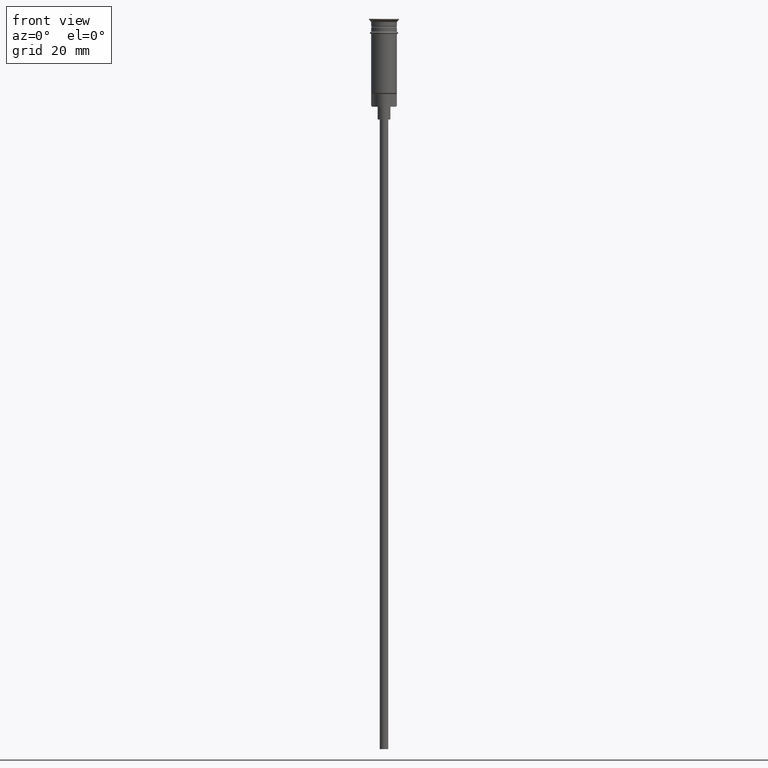
[diagram: clean part render]
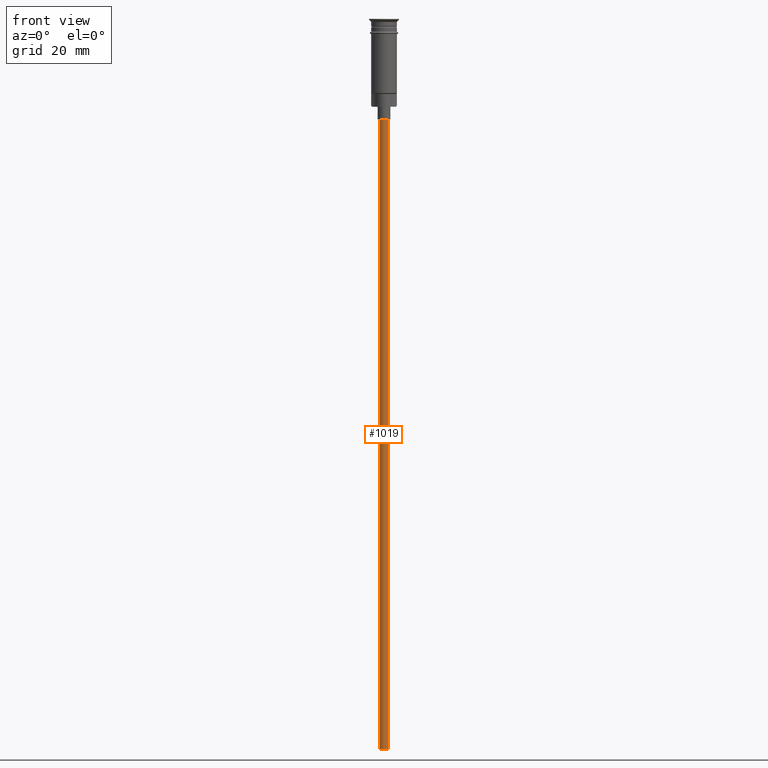
[diagram: same view with one face highlighted and labeled with its STEP entity id]
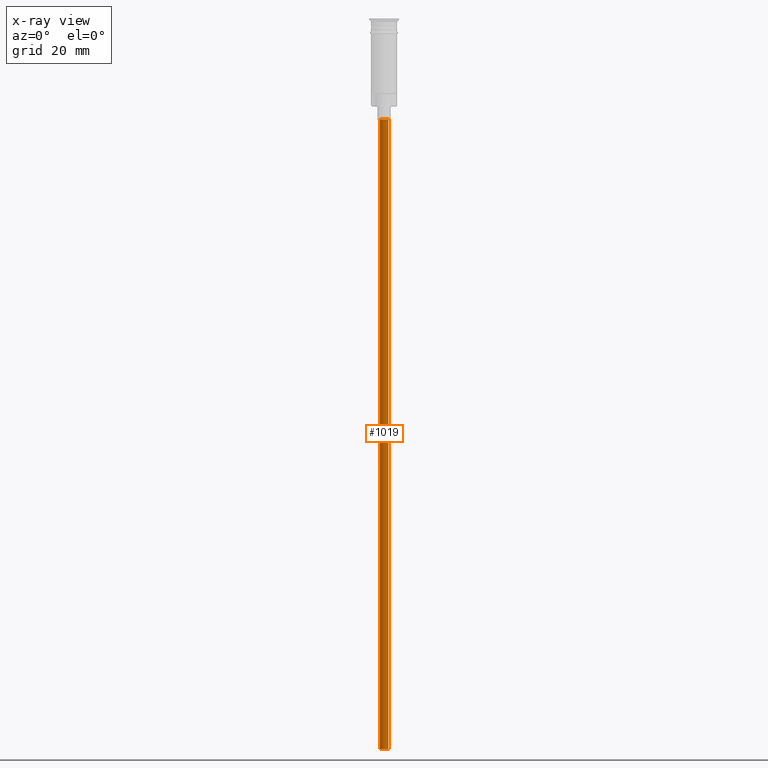
[diagram: x-ray of the same camera — body ghosted, the highlighted face saturated]
A machine part, front view. The second image highlights one B-rep face of the part: STEP entity #1019.
The next image is the same camera in x-ray: the body ghosted, the highlighted face saturated — about 0% of this face is hidden behind the body in this view.
In plain terms, the highlighted cylindrical surface (edge-blend (fillet) strip) has radius 1 mm, axis along (-0, -0, 1).
Its self-contained STEP definition (entity closure, byte-faithful):
#10 = EDGE_CURVE ( 'NONE', #75, #581, #1310, .T. ) ;
#35 = DIRECTION ( 'NONE',  ( 0.000000000000000000, 0.000000000000000000, -1.000000000000000000 ) ) ;
#75 = VERTEX_POINT ( 'NONE', #92 ) ;
#92 = CARTESIAN_POINT ( 'NONE',  ( 0.9999999999999997780, 0.000000000000000000, -23.50000000000000000 ) ) ;
#95 = DIRECTION ( 'NONE',  ( -1.000000000000000000, 0.000000000000000000, 0.000000000000000000 ) ) ;
#152 = EDGE_LOOP ( 'NONE', ( #990, #957, #1519, #747 ) ) ;
#154 = VERTEX_POINT ( 'NONE', #1079 ) ;
#165 = EDGE_CURVE ( 'NONE', #154, #581, #303, .T. ) ;
#211 = VECTOR ( 'NONE', #1301, 1000.000000000000000 ) ;
#217 = DIRECTION ( 'NONE',  ( -0.000000000000000000, -0.000000000000000000, 1.000000000000000000 ) ) ;
#303 = LINE ( 'NONE', #806, #211 ) ;
#307 = CYLINDRICAL_SURFACE ( 'NONE', #1207, 0.9999999999999997780 ) ;
#317 = AXIS2_PLACEMENT_3D ( 'NONE', #341, #958, #95 ) ;
#341 = CARTESIAN_POINT ( 'NONE',  ( 0.000000000000000000, 0.000000000000000000, -170.4999999999999716 ) ) ;
#346 = LINE ( 'NONE', #1479, #997 ) ;
#464 = DIRECTION ( 'NONE',  ( -0.000000000000000000, -0.000000000000000000, 1.000000000000000000 ) ) ;
#473 = DIRECTION ( 'NONE',  ( 1.000000000000000000, 0.000000000000000000, 0.000000000000000000 ) ) ;
#581 = VERTEX_POINT ( 'NONE', #1039 ) ;
#618 = EDGE_CURVE ( 'NONE', #1195, #75, #346, .T. ) ;
#747 = ORIENTED_EDGE ( 'NONE', *, *, #10, .T. ) ;
#806 = CARTESIAN_POINT ( 'NONE',  ( -0.9999999999999997780, 1.224646799147352961E-16, -170.4999999999999716 ) ) ;
#957 = ORIENTED_EDGE ( 'NONE', *, *, #1072, .F. ) ;
#958 = DIRECTION ( 'NONE',  ( 0.000000000000000000, 0.000000000000000000, -1.000000000000000000 ) ) ;
#990 = ORIENTED_EDGE ( 'NONE', *, *, #165, .F. ) ;
#997 = VECTOR ( 'NONE', #464, 1000.000000000000000 ) ;
#1019 = ADVANCED_FACE ( 'NONE', ( #1431 ), #307, .T. ) ;
#1039 = CARTESIAN_POINT ( 'NONE',  ( -0.9999999999999997780, 1.224646799147352961E-16, -23.50000000000000000 ) ) ;
#1072 = EDGE_CURVE ( 'NONE', #1195, #154, #1080, .T. ) ;
#1079 = CARTESIAN_POINT ( 'NONE',  ( -0.9999999999999997780, 1.224646799147352961E-16, -170.4999999999999716 ) ) ;
#1080 = CIRCLE ( 'NONE', #317, 0.9999999999999997780 ) ;
#1186 = AXIS2_PLACEMENT_3D ( 'NONE', #1502, #35, #1384 ) ;
#1195 = VERTEX_POINT ( 'NONE', #1403 ) ;
#1207 = AXIS2_PLACEMENT_3D ( 'NONE', #1600, #217, #473 ) ;
#1301 = DIRECTION ( 'NONE',  ( -0.000000000000000000, -0.000000000000000000, 1.000000000000000000 ) ) ;
#1310 = CIRCLE ( 'NONE', #1186, 0.9999999999999997780 ) ;
#1384 = DIRECTION ( 'NONE',  ( -1.000000000000000000, 0.000000000000000000, 0.000000000000000000 ) ) ;
#1403 = CARTESIAN_POINT ( 'NONE',  ( 0.9999999999999997780, 0.000000000000000000, -170.4999999999999716 ) ) ;
#1431 = FACE_OUTER_BOUND ( 'NONE', #152, .T. ) ;
#1479 = CARTESIAN_POINT ( 'NONE',  ( 0.9999999999999997780, 0.000000000000000000, -170.4999999999999716 ) ) ;
#1502 = CARTESIAN_POINT ( 'NONE',  ( 0.000000000000000000, 0.000000000000000000, -23.50000000000000000 ) ) ;
#1519 = ORIENTED_EDGE ( 'NONE', *, *, #618, .T. ) ;
#1600 = CARTESIAN_POINT ( 'NONE',  ( 0.000000000000000000, 0.000000000000000000, -170.4999999999999716 ) ) ;